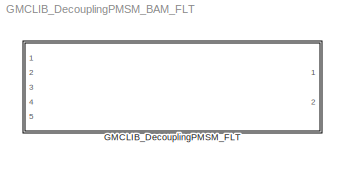
MODEL GMCLIB_DecouplingPMSM_BAM_FLT
KIND model
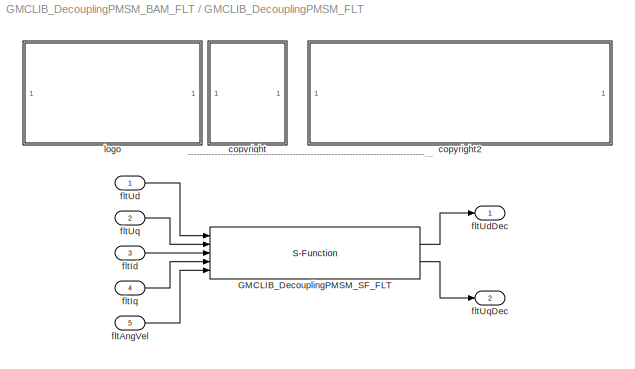
BLOCK [SubSystem] GMCLIB_DecouplingPMSM_FLT
  FunctionWithSeparateData = off
  MaskCallbackString = |
  MaskDescription = Bit accurate model of decoupling for PMSM model.
  MaskDisplay = color('black');port_label('input',1,'fltUd');port_label('input',2,'fltUq');port_label('input',3,'fltId');port_label('input',4,'fltIq');port_label('input',5,'fltAngVel');port_label('output',1,'fltUdDec');port_label('output',2,'fltUqDec');color('black');disp('GMCLIB_DecouplingPMSM_FLT');color('blue');text(tX,tY, 'BAM', 'horizontalAlignment', 'center');
  MaskEnableString = on,on
  MaskHideContents = off
  MaskIconFrame = on
  MaskIconOpaque = on
  MaskIconRotate = none
  MaskIconUnits = pixels
  MaskInitialization = pos = get_param(gcb, 'Position');width = pos(3) - pos(1); height = pos(4) - pos(2);tX=width/2;tY=height*0.9;
  MaskPortRotate = default
  MaskPromptString = fltKd|fltKq
  MaskStyleString = edit,edit
  MaskTabNameString = ,
  MaskToolTipString = on,on
  MaskTunableValueString = on,on
  MaskType = GMCLIB_DecouplingPMSM_FLT
  MaskValueString = fltKd|fltKq
  MaskVarAliasString = ,
  MaskVariables = fltKd=@1;fltKq=@2;
  MaskVisibilityString = on,on
  MinAlgLoopOccurrences = off
  Opaque = off
  Ports = [5, 2]
  PropExecContextOutsideSubsystem = off
  RTWSystemCode = Auto
  RequestExecContextInheritance = off
BLOCK [S-Function] GMCLIB_DecouplingPMSM_FLT/GMCLIB_DecouplingPMSM_SF_FLT
  EnableBusSupport = off
  FunctionName = GMCLIB_DecouplingPMSM_SF_FLT
  Parameters = fltKd,fltKq
  Ports = [5, 2]
BLOCK [SubSystem] GMCLIB_DecouplingPMSM_FLT/<copyright redacted>
  FunctionWithSeparateData = off
  MaskDisplay = text(10,90,'FILE:');text(10,75,'DESRIPTION:')text(10,60,'<copyright redacted>
  MaskHideContents = off
  MaskIconFrame = off
  MaskIconOpaque = on
  MaskIconRotate = none
  MaskIconUnits = pixels
  MaskPortRotate = default
  MinAlgLoopOccurrences = off
  Opaque = off
  Ports = []
  PropExecContextOutsideSubsystem = off
  RTWSystemCode = Auto
  RequestExecContextInheritance = off
BLOCK [SubSystem] GMCLIB_DecouplingPMSM_FLT/copyright2
  FunctionWithSeparateData = off
  MaskDisplay = text(10,90,'GMCLIB_DecouplingPMSM_BAM_FLT.mdl');text(10,75,'Decoupling of d and q axis of PMSM model.');text(10,60,'Freescale')text(10,45,'0.1');text(10,30,'14-Sep-2011');
  MaskHideContents = off
  MaskIconFrame = off
  MaskIconOpaque = on
  MaskIconRotate = none
  MaskIconUnits = pixels
  MaskPortRotate = default
  MinAlgLoopOccurrences = off
  Opaque = off
  Ports = []
  PropExecContextOutsideSubsystem = off
  RTWSystemCode = Auto
  RequestExecContextInheritance = off
BLOCK [Inport] GMCLIB_DecouplingPMSM_FLT/fltAngVel
  IconDisplay = Port number
  OutDataType = fixdt(1, 16)
  OutScaling = 2^0
  Port = 5
BLOCK [Inport] GMCLIB_DecouplingPMSM_FLT/fltId
  IconDisplay = Port number
  OutDataType = fixdt(1, 16)
  OutScaling = 2^0
  Port = 3
BLOCK [Inport] GMCLIB_DecouplingPMSM_FLT/fltIq
  IconDisplay = Port number
  OutDataType = fixdt(1, 16)
  OutScaling = 2^0
  Port = 4
BLOCK [Inport] GMCLIB_DecouplingPMSM_FLT/fltUd
  IconDisplay = Port number
  OutDataType = fixdt(1, 16)
  OutScaling = 2^0
BLOCK [Outport] GMCLIB_DecouplingPMSM_FLT/fltUdDec
  IconDisplay = Port number
  OutDataType = fixdt(1, 16)
  OutScaling = 2^0
BLOCK [Inport] GMCLIB_DecouplingPMSM_FLT/fltUq
  IconDisplay = Port number
  OutDataType = fixdt(1, 16)
  OutScaling = 2^0
  Port = 2
BLOCK [Outport] GMCLIB_DecouplingPMSM_FLT/fltUqDec
  IconDisplay = Port number
  OutDataType = fixdt(1, 16)
  OutScaling = 2^0
  Port = 2
BLOCK [SubSystem] GMCLIB_DecouplingPMSM_FLT/logo
  FunctionWithSeparateData = off
  MaskDisplay = image(imread('logo.jpg'))
  MaskHideContents = off
  MaskIconFrame = off
  MaskIconOpaque = on
  MaskIconRotate = none
  MaskIconUnits = autoscale
  MaskPortRotate = default
  MinAlgLoopOccurrences = off
  Opaque = off
  Ports = []
  PropExecContextOutsideSubsystem = off
  RTWSystemCode = Auto
  RequestExecContextInheritance = off
ANNOTATION GMCLIB_DecouplingPMSM_FLT: ---------------------------------------------------------------------------------------------------------------------------------------------------------------------------------------------------
LINE GMCLIB_DecouplingPMSM_FLT/GMCLIB_DecouplingPMSM_SF_FLT:1 -> GMCLIB_DecouplingPMSM_FLT/fltUdDec:1
LINE GMCLIB_DecouplingPMSM_FLT/GMCLIB_DecouplingPMSM_SF_FLT:2 -> GMCLIB_DecouplingPMSM_FLT/fltUqDec:1
LINE GMCLIB_DecouplingPMSM_FLT/fltAngVel:1 -> GMCLIB_DecouplingPMSM_FLT/GMCLIB_DecouplingPMSM_SF_FLT:5
LINE GMCLIB_DecouplingPMSM_FLT/fltId:1 -> GMCLIB_DecouplingPMSM_FLT/GMCLIB_DecouplingPMSM_SF_FLT:3
LINE GMCLIB_DecouplingPMSM_FLT/fltIq:1 -> GMCLIB_DecouplingPMSM_FLT/GMCLIB_DecouplingPMSM_SF_FLT:4
LINE GMCLIB_DecouplingPMSM_FLT/fltUd:1 -> GMCLIB_DecouplingPMSM_FLT/GMCLIB_DecouplingPMSM_SF_FLT:1
LINE GMCLIB_DecouplingPMSM_FLT/fltUq:1 -> GMCLIB_DecouplingPMSM_FLT/GMCLIB_DecouplingPMSM_SF_FLT:2
